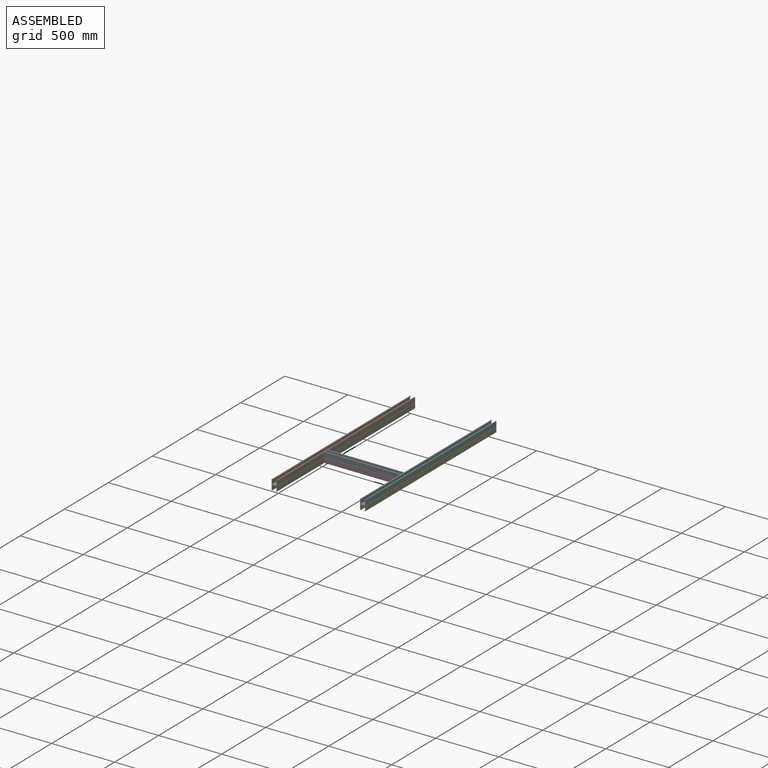
[diagram: assembled view]
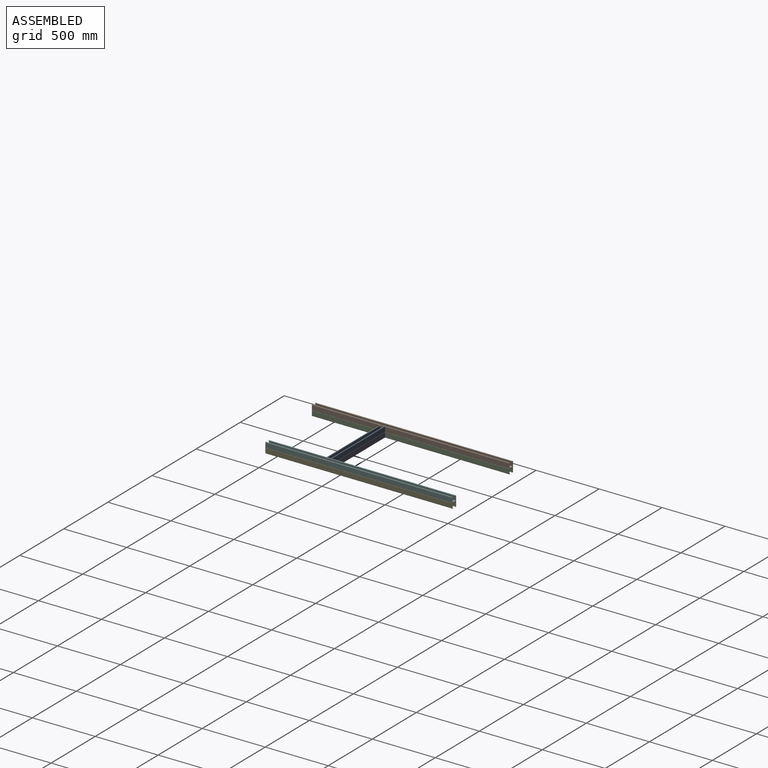
[diagram: assembled view, second angle]
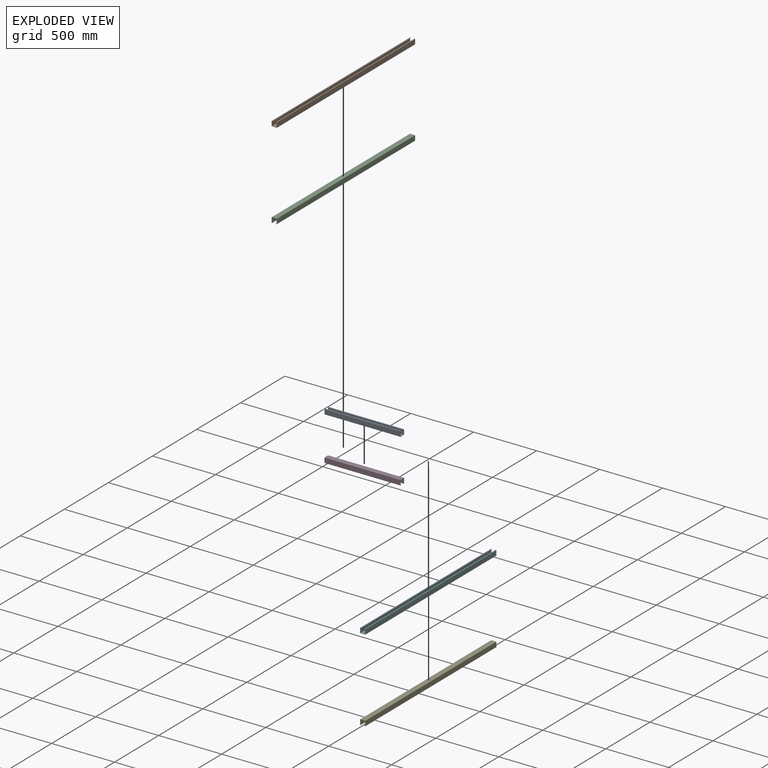
[diagram: exploded view]
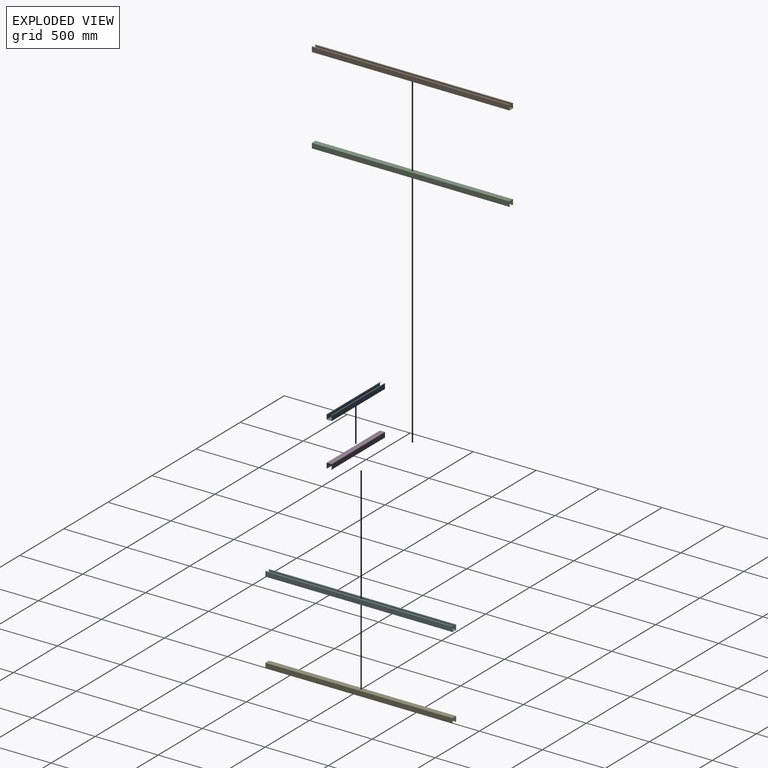
[diagram: exploded view, second angle]
ASSEMBLY  parts=6 mates=3
PART A: 22 faces, bbox 41.3x603.3x41.3 mm
  f0: plane 603.25x0.32mm, normal (0,0,-1), area 195.5mm2, adj f12,f13,f18,f21
  f1: cylinder r=2.37mm len=603.25mm, axis (0,1,0), area 4196.3mm2, adj f2,f12,f13,f18
  f2: plane 603.25x34.14mm, normal (-1,0,0), area 20593.5mm2, adj f1,f12,f13,f14
  f3: plane 603.25x34.93mm, normal (0,0,1), area 21068.5mm2, adj f12,f13,f14,f15
  f4: plane 603.25x34.14mm, normal (1,0,0), area 20593.5mm2, adj f5,f12,f13,f15
  f5: cylinder r=2.37mm len=603.25mm, axis (0,1,0), area 4196.3mm2, adj f4,f12,f13,f19
  f6: plane 603.25x0.32mm, normal (0,0,-1), area 195.5mm2, adj f12,f13,f19,f20
  f7: cylinder r=3.96mm len=603.25mm, axis (0,1,0), area 7050.4mm2, adj f8,f12,f13,f20
  f8: plane 603.25x35.73mm, normal (-1,0,0), area 21551.2mm2, adj f7,f12,f13,f16
  f9: plane 603.25x38.1mm, normal (0,0,-1), area 22983.8mm2, adj f12,f13,f16,f17
  f10: plane 603.25x35.73mm, normal (1,0,0), area 21551.2mm2, adj f11,f12,f13,f17
  f11: cylinder r=3.96mm len=603.25mm, axis (0,1,0), area 7050.4mm2, adj f10,f12,f13,f21
  f12: plane 41.28x41.28mm, normal (0,-1,0), area 210.2mm2, adj f0,f1,f2,f3,f4,f5,f6,f7
  f13: plane 41.28x41.28mm, normal (0,1,0), area 210.2mm2, adj f0,f1,f2,f3,f4,f5,f6,f7
  f14: cylinder r=1.59mm len=603.25mm, axis (0,-1,0), area 1504.3mm2, adj f2,f3,f12,f13
  f15: cylinder r=1.59mm len=603.25mm, axis (0,1,0), area 1504.3mm2, adj f3,f4,f12,f13
  f16: cylinder r=1.59mm len=603.25mm, axis (0,-1,0), area 1504.3mm2, adj f8,f9,f12,f13
  f17: cylinder r=1.59mm len=603.25mm, axis (0,1,0), area 1504.3mm2, adj f9,f10,f12,f13
  f18: cylinder r=0.64mm len=603.25mm, axis (0,1,0), area 520.3mm2, adj f0,f1,f12,f13
  f19: cylinder r=0.64mm len=603.25mm, axis (0,1,0), area 520.3mm2, adj f5,f6,f12,f13
  f20: cylinder r=0.64mm len=603.25mm, axis (0,1,0), area 675.3mm2, adj f6,f7,f12,f13
  f21: cylinder r=0.64mm len=603.25mm, axis (0,1,0), area 675.3mm2, adj f0,f11,f12,f13
PART B: 22 faces, bbox 41.3x1568.5x41.3 mm
  f0: plane 1568.45x34.14mm, normal (-1,0,0), area 53543.1mm2, adj f11,f12,f13,f14
  f1: plane 1568.45x34.93mm, normal (0,0,1), area 54778.1mm2, adj f12,f13,f14,f15
  f2: plane 1568.45x34.14mm, normal (1,0,0), area 53543.1mm2, adj f3,f12,f13,f15
  f3: cylinder r=2.37mm len=1568.45mm, axis (0,1,0), area 10910.4mm2, adj f2,f12,f13,f18
  f4: plane 1568.45x0.32mm, normal (0,0,-1), area 508.3mm2, adj f12,f13,f18,f19
  f5: cylinder r=3.96mm len=1568.45mm, axis (0,1,0), area 18331.1mm2, adj f6,f12,f13,f19
  f6: plane 1568.45x35.73mm, normal (-1,0,0), area 56033mm2, adj f5,f12,f13,f16
  f7: plane 1568.45x38.1mm, normal (0,0,-1), area 59757.9mm2, adj f12,f13,f16,f17
  f8: plane 1568.45x35.73mm, normal (1,0,0), area 56033mm2, adj f9,f12,f13,f17
  f9: cylinder r=3.96mm len=1568.45mm, axis (0,1,0), area 18331.1mm2, adj f8,f12,f13,f20
  f10: plane 1568.45x0.32mm, normal (0,0,-1), area 508.3mm2, adj f12,f13,f20,f21
  f11: cylinder r=2.37mm len=1568.45mm, axis (0,1,0), area 10910.4mm2, adj f0,f12,f13,f21
  f12: plane 41.28x41.28mm, normal (0,-1,0), area 210.2mm2, adj f0,f1,f2,f3,f4,f5,f6,f7
  f13: plane 41.28x41.28mm, normal (0,1,0), area 210.2mm2, adj f0,f1,f2,f3,f4,f5,f6,f7
  f14: cylinder r=1.59mm len=1568.45mm, axis (0,-1,0), area 3911.1mm2, adj f0,f1,f12,f13
  f15: cylinder r=1.59mm len=1568.45mm, axis (0,1,0), area 3911.1mm2, adj f1,f2,f12,f13
  f16: cylinder r=1.59mm len=1568.45mm, axis (0,-1,0), area 3911.1mm2, adj f6,f7,f12,f13
  f17: cylinder r=1.59mm len=1568.45mm, axis (0,1,0), area 3911.1mm2, adj f7,f8,f12,f13
  f18: cylinder r=0.64mm len=1568.45mm, axis (0,1,0), area 1352.7mm2, adj f3,f4,f12,f13
  f19: cylinder r=0.64mm len=1568.45mm, axis (0,1,0), area 1755.7mm2, adj f4,f5,f12,f13
  f20: cylinder r=0.64mm len=1568.45mm, axis (0,1,0), area 1755.7mm2, adj f9,f10,f12,f13
  f21: cylinder r=0.64mm len=1568.45mm, axis (0,1,0), area 1352.7mm2, adj f10,f11,f12,f13
PART C: same geometry as B
PART D: same geometry as A
PART E: 24 faces, bbox 41.3x1485.9x41.3 mm
  f0: plane 1485.9x34.14mm, normal (-1,0,0), area 50725.1mm2, adj f11,f12,f13,f14
  f1: plane 1485.9x34.93mm, normal (0,0,1), area 51895.1mm2, adj f12,f13,f14,f15
  f2: plane 1485.9x34.14mm, normal (1,0,0), area 50725.1mm2, adj f3,f12,f13,f15
  f3: cylinder r=2.37mm len=1485.9mm, axis (0,1,0), area 10336.1mm2, adj f2,f12,f13,f19,f20,f21
  f4: plane 1484.63x0.32mm, normal (0,0,-1), area 481.2mm2, adj f18,f19,f20,f21
  f5: cylinder r=3.96mm len=1485.9mm, axis (0,1,0), area 17366.3mm2, adj f6,f12,f13,f18
  f6: plane 1485.9x35.73mm, normal (-1,0,0), area 53083.9mm2, adj f5,f12,f13,f16
  f7: plane 1485.9x38.1mm, normal (0,0,-1), area 56612.8mm2, adj f12,f13,f16,f17
  f8: plane 1485.9x35.73mm, normal (1,0,0), area 53083.9mm2, adj f9,f12,f13,f17
  f9: cylinder r=3.96mm len=1485.9mm, axis (0,1,0), area 17366.3mm2, adj f8,f12,f13,f22
  f10: plane 1485.9x0.32mm, normal (0,0,-1), area 481.6mm2, adj f12,f13,f22,f23
  f11: cylinder r=2.37mm len=1485.9mm, axis (0,1,0), area 10336.1mm2, adj f0,f12,f13,f23
  f12: plane 41.28x41.28mm, normal (0,-1,0), area 209.4mm2, adj f0,f1,f2,f3,f5,f6,f7,f8
  f13: plane 41.28x41.28mm, normal (0,1,0), area 209.4mm2, adj f0,f1,f2,f3,f5,f6,f7,f8
  f14: cylinder r=1.59mm len=1485.9mm, axis (0,-1,0), area 3705.3mm2, adj f0,f1,f12,f13
  f15: cylinder r=1.59mm len=1485.9mm, axis (0,1,0), area 3705.3mm2, adj f1,f2,f12,f13
  f16: cylinder r=1.59mm len=1485.9mm, axis (0,-1,0), area 3705.3mm2, adj f6,f7,f12,f13
  f17: cylinder r=1.59mm len=1485.9mm, axis (0,1,0), area 3705.3mm2, adj f7,f8,f12,f13
  f18: cylinder r=0.64mm len=1485.9mm, axis (0,1,0), area 1662.8mm2, adj f4,f5,f12,f13,f19,f20
  f19: cylinder r=0.64mm len=1.61mm, axis (-1,0,0), area 1.1mm2, adj f3,f4,f12,f18,f21
  f20: cylinder r=0.64mm len=1.61mm, axis (1,0,0), area 1.1mm2, adj f3,f4,f13,f18,f21
  f21: cylinder r=0.64mm len=1485.87mm, axis (0,1,0), area 1281.1mm2, adj f3,f4,f19,f20
  f22: cylinder r=0.64mm len=1485.9mm, axis (0,1,0), area 1663.3mm2, adj f9,f10,f12,f13
  f23: cylinder r=0.64mm len=1485.9mm, axis (0,1,0), area 1281.6mm2, adj f10,f11,f12,f13
PART F: same geometry as E
PLACE A rot(axis=(0,0,-1),90deg) t=(210.78,-162.52,168.83)mm
PLACE B t=(-132.33,40.63,168.86)mm
PLACE C rot(axis=(0,-1,0),180deg) t=(-91.06,40.63,168.86)mm
PLACE D rot(axis=(-0.71,-0.71,0),180deg) t=(210.78,-203.8,168.83)mm
PLACE E rot(axis=(0,1,0),180deg) t=(553.74,81.99,168.8)mm
PLACE F t=(512.47,81.99,168.8)mm
MATE fastened A.f9 <-> D.f9  axis (0,0,-1) through (210.78,-183.16,168.83)mm
MATE fastened E.f7 <-> F.f7  axis (0,0,1) through (533.11,81.99,168.8)mm
MATE fastened B.f7 <-> C.f7  axis (0,0,-1) through (-111.7,40.63,168.86)mm
